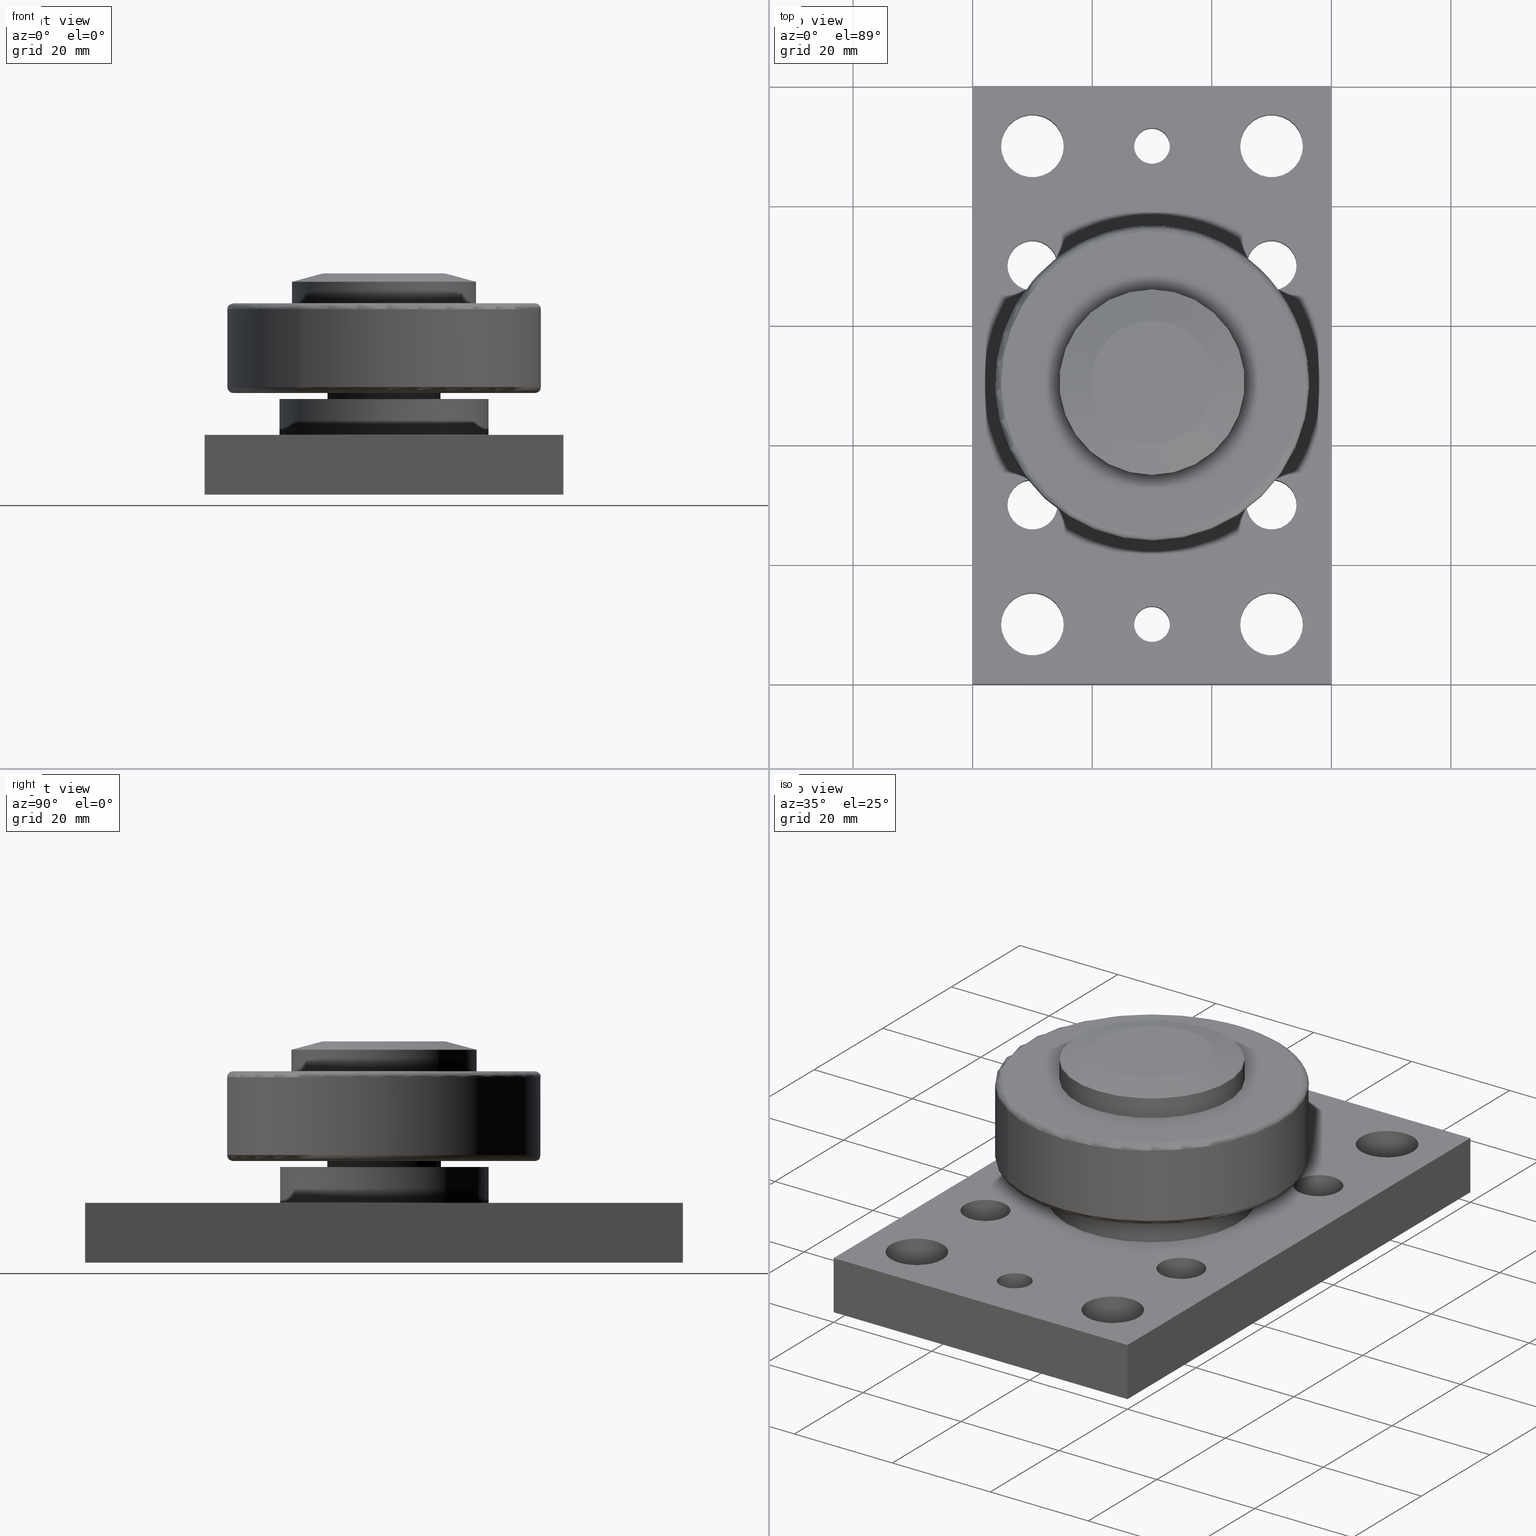
[diagram: canonical four-view strip — front | top / right | iso, engineering-drawing reading convention]
A machine part, canonical four-view strip (front | top / right | iso — engineering-drawing reading convention). The complete STEP part file that produces these views, byte-faithful:
ISO-10303-21;
HEADER;
/****************************************************************
 * Generated by software with PDElib inside                    *
 * PDElib Version v51a, created Wed 11/30/2011                  *
 * ITI Transcendata (http://www.transcendata.com/)              *
 ****************************************************************/
FILE_DESCRIPTION((''),'2;1');
FILE_NAME('K:\\Daten\\KOMPONENTEN 2D + 3D\\KOMPONENTEN Step-Files f\S\|r extern\\_ALFATEC_ALFA-Speed Rollen und Profile\\PAS-Polyamid\\ALFATEC_PAS 050.0360_BR1100.stp','2013-10-01T12:06:01',('hipp'),(''),'Autodesk Inventor 2013','Autodesk Inventor 2013','');
FILE_SCHEMA(('CONFIG_CONTROL_DESIGN'));
ENDSEC;
DATA;
#5=APPLICATION_CONTEXT('configuration controlled 3D designs of mechanical parts and assemblies');
#6=APPLICATION_PROTOCOL_DEFINITION('International Standard','ap203_configuration_controlled_3d_design_of_mechanical_parts_and_assemblies_mim_lf',2004,#5);
#7=PRODUCT_CONTEXT('',#5,'mechanical');
#8=PRODUCT('ALFATEC_PAS 050','ALFATEC_PAS 050',$,(#7));
#9=PRODUCT_RELATED_PRODUCT_CATEGORY('part',$,(#8));
#10=PRODUCT_DEFINITION_FORMATION('',$,#8);
#11=PRODUCT_DEFINITION_CONTEXT('part definition',#5,'design');
#12=PRODUCT_DEFINITION('',$,#10,#11);
#18=(NAMED_UNIT(*)PLANE_ANGLE_UNIT()SI_UNIT($,.RADIAN.));
#19=DIMENSIONAL_EXPONENTS(0.0,0.0,0.0,0.0,0.0,0.0,0.0);
#20=PLANE_ANGLE_MEASURE_WITH_UNIT(PLANE_ANGLE_MEASURE(0.0174532925),#18);
#24=(CONVERSION_BASED_UNIT('DEGREE',#20)NAMED_UNIT(#19)PLANE_ANGLE_UNIT());
#28=(NAMED_UNIT(*)SI_UNIT($,.STERADIAN.)SOLID_ANGLE_UNIT());
#32=(LENGTH_UNIT()NAMED_UNIT(*)SI_UNIT(.MILLI.,.METRE.));
#34=UNCERTAINTY_MEASURE_WITH_UNIT(LENGTH_MEASURE(0.01),#32,'DISTANCE_ACCURACY_VALUE','');
#36=(GEOMETRIC_REPRESENTATION_CONTEXT(3)GLOBAL_UNCERTAINTY_ASSIGNED_CONTEXT((#34))GLOBAL_UNIT_ASSIGNED_CONTEXT((#24,#28,#32))REPRESENTATION_CONTEXT('None','None'));
#37=AXIS2_PLACEMENT_3D('',#38,#39,#40);
#38=CARTESIAN_POINT('',(0.0,0.0,0.0));
#39=DIRECTION('',(0.0,0.0,1.0));
#40=DIRECTION('',(1.0,0.0,0.0));
#41=SHAPE_REPRESENTATION('',(#37),#36);
#42=PRODUCT_DEFINITION_SHAPE('','',#12);
#43=SHAPE_DEFINITION_REPRESENTATION(#42,#41);
#49=(NAMED_UNIT(*)PLANE_ANGLE_UNIT()SI_UNIT($,.RADIAN.));
#50=DIMENSIONAL_EXPONENTS(0.0,0.0,0.0,0.0,0.0,0.0,0.0);
#51=PLANE_ANGLE_MEASURE_WITH_UNIT(PLANE_ANGLE_MEASURE(0.0174532925),#49);
#55=(CONVERSION_BASED_UNIT('DEGREE',#51)NAMED_UNIT(#50)PLANE_ANGLE_UNIT());
#59=(NAMED_UNIT(*)SI_UNIT($,.STERADIAN.)SOLID_ANGLE_UNIT());
#63=(LENGTH_UNIT()NAMED_UNIT(*)SI_UNIT(.MILLI.,.METRE.));
#65=UNCERTAINTY_MEASURE_WITH_UNIT(LENGTH_MEASURE(0.000001),#63,'DISTANCE_ACCURACY_VALUE','');
#67=(GEOMETRIC_REPRESENTATION_CONTEXT(3)GLOBAL_UNCERTAINTY_ASSIGNED_CONTEXT((#65))GLOBAL_UNIT_ASSIGNED_CONTEXT((#55,#59,#63))REPRESENTATION_CONTEXT('','3D'));
#68=CARTESIAN_POINT('',(29.999999999999993,50.0,36.300000000000011));
#69=DIRECTION('',(0.0,0.0,-1.0));
#70=DIRECTION('',(0.0,-1.0,0.0));
#71=AXIS2_PLACEMENT_3D('',#68,#69,#70);
#72=CONICAL_SURFACE('',#71,12.88756443470179,75.000000000000043);
#73=CARTESIAN_POINT('',(29.999999999999993,60.275128869403581,37.0));
#74=VERTEX_POINT('',#73);
#75=CARTESIAN_POINT('',(29.999999999999993,50.0,37.000000000000014));
#76=DIRECTION('',(0.0,0.0,-1.0));
#77=DIRECTION('',(0.0,-1.0,0.0));
#78=AXIS2_PLACEMENT_3D('',#75,#76,#77);
#79=CIRCLE('',#78,10.275128869403582);
#80=EDGE_CURVE('',#74,#74,#79,.T.);
#81=ORIENTED_EDGE('',*,*,#80,.T.);
#82=EDGE_LOOP('',(#81));
#83=FACE_OUTER_BOUND('',#82,.T.);
#84=CARTESIAN_POINT('',(29.999999999999993,65.5,35.600000000000009));
#85=VERTEX_POINT('',#84);
#86=CARTESIAN_POINT('',(29.999999999999993,50.0,35.600000000000009));
#87=DIRECTION('',(0.0,0.0,1.0));
#88=DIRECTION('',(0.0,-1.0,0.0));
#89=AXIS2_PLACEMENT_3D('',#86,#87,#88);
#90=CIRCLE('',#89,15.499999999999996);
#91=EDGE_CURVE('',#85,#85,#90,.T.);
#92=ORIENTED_EDGE('',*,*,#91,.T.);
#93=EDGE_LOOP('',(#92));
#94=FACE_BOUND('',#93,.T.);
#95=ADVANCED_FACE('',(#83,#94),#72,.T.);
#96=CARTESIAN_POINT('',(29.999999999999993,50.0,34.500000000000014));
#97=DIRECTION('',(0.0,0.0,-1.0));
#98=DIRECTION('',(0.0,1.0,0.0));
#99=AXIS2_PLACEMENT_3D('',#96,#97,#98);
#100=CYLINDRICAL_SURFACE('',#99,15.499999999999996);
#101=CARTESIAN_POINT('',(29.999999999999993,65.5,32.000000000000014));
#102=VERTEX_POINT('',#101);
#103=CARTESIAN_POINT('',(29.999999999999993,50.0,32.0));
#104=DIRECTION('',(0.0,0.0,-1.0));
#105=DIRECTION('',(0.0,1.0,0.0));
#106=AXIS2_PLACEMENT_3D('',#103,#104,#105);
#107=CIRCLE('',#106,15.499999999999996);
#108=EDGE_CURVE('',#102,#102,#107,.T.);
#109=ORIENTED_EDGE('',*,*,#108,.F.);
#110=EDGE_LOOP('',(#109));
#111=FACE_OUTER_BOUND('',#110,.T.);
#112=ORIENTED_EDGE('',*,*,#91,.F.);
#113=EDGE_LOOP('',(#112));
#114=FACE_BOUND('',#113,.T.);
#115=ADVANCED_FACE('',(#111,#114),#100,.T.);
#116=CARTESIAN_POINT('',(29.999999999999993,57.749999999999986,37.000000000000014));
#117=DIRECTION('',(0.0,0.0,1.0));
#118=DIRECTION('',(1.0,0.0,0.0));
#119=AXIS2_PLACEMENT_3D('',#116,#117,#118);
#120=PLANE('',#119);
#121=ORIENTED_EDGE('',*,*,#80,.F.);
#122=EDGE_LOOP('',(#121));
#123=FACE_OUTER_BOUND('',#122,.T.);
#124=ADVANCED_FACE('',(#123),#120,.T.);
#125=CARTESIAN_POINT('',(30.0,50.000000000000014,18.000000000000053));
#126=DIRECTION('',(0.0,0.0,-1.0));
#127=DIRECTION('',(-1.0,0.0,0.0));
#128=AXIS2_PLACEMENT_3D('',#125,#126,#127);
#129=TOROIDAL_SURFACE('',#128,25.250000000000004,1.0);
#130=CARTESIAN_POINT('',(16.027586957531035,27.777619979609675,18.000000000000036));
#131=VERTEX_POINT('',#130);
#132=CARTESIAN_POINT('',(30.0,50.000000000000014,18.000000000000053));
#133=DIRECTION('',(0.0,0.0,-1.0));
#134=DIRECTION('',(0.532282401617865,0.846566857919632,0.0));
#135=AXIS2_PLACEMENT_3D('',#132,#133,#134);
#136=CIRCLE('',#135,26.250000000000004);
#137=EDGE_CURVE('',#131,#131,#136,.T.);
#138=ORIENTED_EDGE('',*,*,#137,.T.);
#139=EDGE_LOOP('',(#138));
#140=FACE_OUTER_BOUND('',#139,.T.);
#141=CARTESIAN_POINT('',(16.559869359148905,28.624186837529315,17.000000000000032));
#142=VERTEX_POINT('',#141);
#143=CARTESIAN_POINT('',(30.0,50.000000000000014,17.000000000000057));
#144=DIRECTION('',(0.0,0.0,1.0));
#145=DIRECTION('',(0.532282401617865,0.846566857919632,0.0));
#146=AXIS2_PLACEMENT_3D('',#143,#144,#145);
#147=CIRCLE('',#146,25.25);
#148=EDGE_CURVE('',#142,#142,#147,.T.);
#149=ORIENTED_EDGE('',*,*,#148,.T.);
#150=EDGE_LOOP('',(#149));
#151=FACE_BOUND('',#150,.T.);
#152=ADVANCED_FACE('',(#140,#151),#129,.T.);
#153=CARTESIAN_POINT('',(30.0,50.0,24.500000000000057));
#154=DIRECTION('',(0.0,0.0,-1.0));
#155=DIRECTION('',(-0.532282401617865,-0.846566857919632,0.0));
#156=AXIS2_PLACEMENT_3D('',#153,#154,#155);
#157=CYLINDRICAL_SURFACE('',#156,26.250000000000004);
#158=CARTESIAN_POINT('',(16.027586957531046,27.777619979609653,31.000000000000032));
#159=VERTEX_POINT('',#158);
#160=CARTESIAN_POINT('',(30.0,49.999999999999993,31.00000000000005));
#161=DIRECTION('',(0.0,0.0,1.0));
#162=DIRECTION('',(0.532282401617865,0.846566857919632,0.0));
#163=AXIS2_PLACEMENT_3D('',#160,#161,#162);
#164=CIRCLE('',#163,26.250000000000004);
#165=EDGE_CURVE('',#159,#159,#164,.T.);
#166=ORIENTED_EDGE('',*,*,#165,.F.);
#167=EDGE_LOOP('',(#166));
#168=FACE_OUTER_BOUND('',#167,.T.);
#169=ORIENTED_EDGE('',*,*,#137,.F.);
#170=EDGE_LOOP('',(#169));
#171=FACE_BOUND('',#170,.T.);
#172=ADVANCED_FACE('',(#168,#171),#157,.T.);
#173=CARTESIAN_POINT('',(30.0,49.999999999999993,31.00000000000005));
#174=DIRECTION('',(0.0,0.0,-1.0));
#175=DIRECTION('',(-1.0,0.0,0.0));
#176=AXIS2_PLACEMENT_3D('',#173,#174,#175);
#177=TOROIDAL_SURFACE('',#176,25.250000000000004,1.0);
#178=CARTESIAN_POINT('',(16.559869359148905,28.624186837529287,32.000000000000028));
#179=VERTEX_POINT('',#178);
#180=CARTESIAN_POINT('',(30.0,49.999999999999993,32.000000000000057));
#181=DIRECTION('',(0.0,0.0,-1.0));
#182=DIRECTION('',(0.532282401617865,0.846566857919632,0.0));
#183=AXIS2_PLACEMENT_3D('',#180,#181,#182);
#184=CIRCLE('',#183,25.25);
#185=EDGE_CURVE('',#179,#179,#184,.T.);
#186=ORIENTED_EDGE('',*,*,#185,.T.);
#187=EDGE_LOOP('',(#186));
#188=FACE_OUTER_BOUND('',#187,.T.);
#189=ORIENTED_EDGE('',*,*,#165,.T.);
#190=EDGE_LOOP('',(#189));
#191=FACE_BOUND('',#190,.T.);
#192=ADVANCED_FACE('',(#188,#191),#177,.T.);
#193=CARTESIAN_POINT('',(20.512066191161548,34.909945757582562,17.000000000000036));
#194=DIRECTION('',(0.0,0.0,-1.0));
#195=DIRECTION('',(-1.0,0.0,0.0));
#196=AXIS2_PLACEMENT_3D('',#193,#194,#195);
#197=PLANE('',#196);
#198=ORIENTED_EDGE('',*,*,#148,.F.);
#199=EDGE_LOOP('',(#198));
#200=FACE_OUTER_BOUND('',#199,.T.);
#201=CARTESIAN_POINT('',(29.999999999999993,40.500000000000014,17.000000000000036));
#202=VERTEX_POINT('',#201);
#203=CARTESIAN_POINT('',(29.999999999999993,50.0,17.000000000000036));
#204=DIRECTION('',(0.0,0.0,-1.0));
#205=DIRECTION('',(0.0,1.0,0.0));
#206=AXIS2_PLACEMENT_3D('',#203,#204,#205);
#207=CIRCLE('',#206,9.499999999999991);
#208=EDGE_CURVE('',#202,#202,#207,.T.);
#209=ORIENTED_EDGE('',*,*,#208,.F.);
#210=EDGE_LOOP('',(#209));
#211=FACE_BOUND('',#210,.T.);
#212=ADVANCED_FACE('',(#200,#211),#197,.T.);
#213=CARTESIAN_POINT('',(29.999999999999993,53.75,32.0));
#214=DIRECTION('',(0.0,0.0,1.0));
#215=DIRECTION('',(1.0,0.0,0.0));
#216=AXIS2_PLACEMENT_3D('',#213,#214,#215);
#217=PLANE('',#216);
#218=ORIENTED_EDGE('',*,*,#185,.F.);
#219=EDGE_LOOP('',(#218));
#220=FACE_OUTER_BOUND('',#219,.T.);
#221=ORIENTED_EDGE('',*,*,#108,.T.);
#222=EDGE_LOOP('',(#221));
#223=FACE_BOUND('',#222,.T.);
#224=ADVANCED_FACE('',(#220,#223),#217,.T.);
#225=CARTESIAN_POINT('',(29.999999999999993,50.0,12.999999999999996));
#226=DIRECTION('',(0.0,0.0,1.0));
#227=DIRECTION('',(0.0,1.0,0.0));
#228=AXIS2_PLACEMENT_3D('',#225,#226,#227);
#229=CYLINDRICAL_SURFACE('',#228,17.5);
#230=CARTESIAN_POINT('',(29.999999999999993,67.5,15.999999999999996));
#231=VERTEX_POINT('',#230);
#232=CARTESIAN_POINT('',(29.999999999999993,50.0,15.999999999999996));
#233=DIRECTION('',(0.0,0.0,1.0));
#234=DIRECTION('',(0.0,1.0,0.0));
#235=AXIS2_PLACEMENT_3D('',#232,#233,#234);
#236=CIRCLE('',#235,17.5);
#237=EDGE_CURVE('',#231,#231,#236,.T.);
#238=ORIENTED_EDGE('',*,*,#237,.F.);
#239=EDGE_LOOP('',(#238));
#240=FACE_OUTER_BOUND('',#239,.T.);
#241=CARTESIAN_POINT('',(29.999999999999993,67.5,9.999999999999996));
#242=VERTEX_POINT('',#241);
#243=CARTESIAN_POINT('',(29.999999999999993,50.0,10.0));
#244=DIRECTION('',(0.0,0.0,-1.0));
#245=DIRECTION('',(0.0,1.0,0.0));
#246=AXIS2_PLACEMENT_3D('',#243,#244,#245);
#247=CIRCLE('',#246,17.5);
#248=EDGE_CURVE('',#242,#242,#247,.T.);
#249=ORIENTED_EDGE('',*,*,#248,.F.);
#250=EDGE_LOOP('',(#249));
#251=FACE_BOUND('',#250,.T.);
#252=ADVANCED_FACE('',(#240,#251),#229,.T.);
#253=CARTESIAN_POINT('',(29.999999999999993,63.500000000000007,16.0));
#254=DIRECTION('',(0.0,0.0,1.0));
#255=DIRECTION('',(1.0,0.0,0.0));
#256=AXIS2_PLACEMENT_3D('',#253,#254,#255);
#257=PLANE('',#256);
#258=ORIENTED_EDGE('',*,*,#237,.T.);
#259=EDGE_LOOP('',(#258));
#260=FACE_OUTER_BOUND('',#259,.T.);
#261=CARTESIAN_POINT('',(29.999999999999993,59.499999999999986,16.0));
#262=VERTEX_POINT('',#261);
#263=CARTESIAN_POINT('',(29.999999999999993,50.0,16.0));
#264=DIRECTION('',(0.0,0.0,1.0));
#265=DIRECTION('',(0.0,1.0,0.0));
#266=AXIS2_PLACEMENT_3D('',#263,#264,#265);
#267=CIRCLE('',#266,9.499999999999991);
#268=EDGE_CURVE('',#262,#262,#267,.T.);
#269=ORIENTED_EDGE('',*,*,#268,.F.);
#270=EDGE_LOOP('',(#269));
#271=FACE_BOUND('',#270,.T.);
#272=ADVANCED_FACE('',(#260,#271),#257,.T.);
#273=CARTESIAN_POINT('',(29.999999999999993,50.0,18.000000000000007));
#274=DIRECTION('',(0.0,0.0,1.0));
#275=DIRECTION('',(0.0,1.0,0.0));
#276=AXIS2_PLACEMENT_3D('',#273,#274,#275);
#277=CYLINDRICAL_SURFACE('',#276,9.499999999999991);
#278=ORIENTED_EDGE('',*,*,#208,.T.);
#279=EDGE_LOOP('',(#278));
#280=FACE_OUTER_BOUND('',#279,.T.);
#281=ORIENTED_EDGE('',*,*,#268,.T.);
#282=EDGE_LOOP('',(#281));
#283=FACE_BOUND('',#282,.T.);
#284=ADVANCED_FACE('',(#280,#283),#277,.T.);
#285=CARTESIAN_POINT('',(29.999999999999993,50.0,10.0));
#286=DIRECTION('',(0.0,0.0,1.0));
#287=DIRECTION('',(1.0,0.0,0.0));
#288=AXIS2_PLACEMENT_3D('',#285,#286,#287);
#289=PLANE('',#288);
#290=CARTESIAN_POINT('',(0.0,0.0,10.0));
#291=VERTEX_POINT('',#290);
#292=CARTESIAN_POINT('',(-2.723482E-014,100.0,10.0));
#293=VERTEX_POINT('',#292);
#294=CARTESIAN_POINT('',(0.0,0.0,10.0));
#295=DIRECTION('',(0.0,1.0,0.0));
#296=VECTOR('',#295,100.0);
#297=LINE('',#294,#296);
#298=EDGE_CURVE('',#291,#293,#297,.T.);
#299=ORIENTED_EDGE('',*,*,#298,.F.);
#300=CARTESIAN_POINT('',(60.0,1.034896E-030,10.0));
#301=VERTEX_POINT('',#300);
#302=CARTESIAN_POINT('',(60.0,1.034896E-030,10.0));
#303=DIRECTION('',(-1.0,0.0,0.0));
#304=VECTOR('',#303,60.0);
#305=LINE('',#302,#304);
#306=EDGE_CURVE('',#301,#291,#305,.T.);
#307=ORIENTED_EDGE('',*,*,#306,.F.);
#308=CARTESIAN_POINT('',(59.999999999999986,100.0,10.0));
#309=VERTEX_POINT('',#308);
#310=CARTESIAN_POINT('',(59.999999999999986,100.0,10.0));
#311=DIRECTION('',(0.0,-1.0,0.0));
#312=VECTOR('',#311,100.0);
#313=LINE('',#310,#312);
#314=EDGE_CURVE('',#309,#301,#313,.T.);
#315=ORIENTED_EDGE('',*,*,#314,.F.);
#316=CARTESIAN_POINT('',(-2.723482E-014,100.0,10.0));
#317=DIRECTION('',(1.0,0.0,0.0));
#318=VECTOR('',#317,60.000000000000007);
#319=LINE('',#316,#318);
#320=EDGE_CURVE('',#293,#309,#319,.T.);
#321=ORIENTED_EDGE('',*,*,#320,.F.);
#322=EDGE_LOOP('',(#299,#307,#315,#321));
#323=FACE_OUTER_BOUND('',#322,.T.);
#324=CARTESIAN_POINT('',(33.000000000000014,10.0,10.0));
#325=VERTEX_POINT('',#324);
#326=CARTESIAN_POINT('',(30.000000000000014,10.0,10.0));
#327=DIRECTION('',(0.0,0.0,-1.0));
#328=DIRECTION('',(1.0,0.0,0.0));
#329=AXIS2_PLACEMENT_3D('',#326,#327,#328);
#330=CIRCLE('',#329,3.0);
#331=EDGE_CURVE('',#325,#325,#330,.T.);
#332=ORIENTED_EDGE('',*,*,#331,.T.);
#333=EDGE_LOOP('',(#332));
#334=FACE_BOUND('',#333,.T.);
#335=CARTESIAN_POINT('',(32.999999999999986,90.0,10.0));
#336=VERTEX_POINT('',#335);
#337=CARTESIAN_POINT('',(29.999999999999993,90.0,10.0));
#338=DIRECTION('',(0.0,0.0,-1.0));
#339=DIRECTION('',(1.0,0.0,0.0));
#340=AXIS2_PLACEMENT_3D('',#337,#338,#339);
#341=CIRCLE('',#340,3.0);
#342=EDGE_CURVE('',#336,#336,#341,.T.);
#343=ORIENTED_EDGE('',*,*,#342,.T.);
#344=EDGE_LOOP('',(#343));
#345=FACE_BOUND('',#344,.T.);
#346=CARTESIAN_POINT('',(55.25,10.000000000000009,10.0));
#347=VERTEX_POINT('',#346);
#348=CARTESIAN_POINT('',(50.0,10.000000000000009,10.0));
#349=DIRECTION('',(0.0,0.0,-1.0));
#350=DIRECTION('',(1.0,0.0,0.0));
#351=AXIS2_PLACEMENT_3D('',#348,#349,#350);
#352=CIRCLE('',#351,5.25);
#353=EDGE_CURVE('',#347,#347,#352,.T.);
#354=ORIENTED_EDGE('',*,*,#353,.T.);
#355=EDGE_LOOP('',(#354));
#356=FACE_BOUND('',#355,.T.);
#357=CARTESIAN_POINT('',(15.250000000000002,10.0,10.0));
#358=VERTEX_POINT('',#357);
#359=CARTESIAN_POINT('',(10.0,10.0,10.0));
#360=DIRECTION('',(0.0,0.0,-1.0));
#361=DIRECTION('',(1.0,0.0,0.0));
#362=AXIS2_PLACEMENT_3D('',#359,#360,#361);
#363=CIRCLE('',#362,5.25);
#364=EDGE_CURVE('',#358,#358,#363,.T.);
#365=ORIENTED_EDGE('',*,*,#364,.T.);
#366=EDGE_LOOP('',(#365));
#367=FACE_BOUND('',#366,.T.);
#368=CARTESIAN_POINT('',(15.249999999999989,90.0,10.0));
#369=VERTEX_POINT('',#368);
#370=CARTESIAN_POINT('',(9.999999999999989,90.0,10.0));
#371=DIRECTION('',(0.0,0.0,-1.0));
#372=DIRECTION('',(1.0,0.0,0.0));
#373=AXIS2_PLACEMENT_3D('',#370,#371,#372);
#374=CIRCLE('',#373,5.25);
#375=EDGE_CURVE('',#369,#369,#374,.T.);
#376=ORIENTED_EDGE('',*,*,#375,.T.);
#377=EDGE_LOOP('',(#376));
#378=FACE_BOUND('',#377,.T.);
#379=CARTESIAN_POINT('',(55.249999999999986,90.000000000000028,10.0));
#380=VERTEX_POINT('',#379);
#381=CARTESIAN_POINT('',(49.999999999999972,90.000000000000028,10.0));
#382=DIRECTION('',(0.0,0.0,-1.0));
#383=DIRECTION('',(1.0,0.0,0.0));
#384=AXIS2_PLACEMENT_3D('',#381,#382,#383);
#385=CIRCLE('',#384,5.25);
#386=EDGE_CURVE('',#380,#380,#385,.T.);
#387=ORIENTED_EDGE('',*,*,#386,.T.);
#388=EDGE_LOOP('',(#387));
#389=FACE_BOUND('',#388,.T.);
#390=CARTESIAN_POINT('',(14.188000000000001,29.999999999999964,10.0));
#391=VERTEX_POINT('',#390);
#392=CARTESIAN_POINT('',(10.0,29.999999999999964,10.0));
#393=DIRECTION('',(0.0,0.0,-1.0));
#394=DIRECTION('',(1.0,0.0,0.0));
#395=AXIS2_PLACEMENT_3D('',#392,#393,#394);
#396=CIRCLE('',#395,4.188);
#397=EDGE_CURVE('',#391,#391,#396,.T.);
#398=ORIENTED_EDGE('',*,*,#397,.T.);
#399=EDGE_LOOP('',(#398));
#400=FACE_BOUND('',#399,.T.);
#401=CARTESIAN_POINT('',(14.187999999999981,70.0,10.0));
#402=VERTEX_POINT('',#401);
#403=CARTESIAN_POINT('',(9.999999999999981,70.0,10.0));
#404=DIRECTION('',(0.0,0.0,-1.0));
#405=DIRECTION('',(1.0,0.0,0.0));
#406=AXIS2_PLACEMENT_3D('',#403,#404,#405);
#407=CIRCLE('',#406,4.188);
#408=EDGE_CURVE('',#402,#402,#407,.T.);
#409=ORIENTED_EDGE('',*,*,#408,.T.);
#410=EDGE_LOOP('',(#409));
#411=FACE_BOUND('',#410,.T.);
#412=CARTESIAN_POINT('',(54.188000000000009,70.000000000000028,10.0));
#413=VERTEX_POINT('',#412);
#414=CARTESIAN_POINT('',(50.0,70.000000000000028,10.0));
#415=DIRECTION('',(0.0,0.0,-1.0));
#416=DIRECTION('',(1.0,0.0,0.0));
#417=AXIS2_PLACEMENT_3D('',#414,#415,#416);
#418=CIRCLE('',#417,4.188);
#419=EDGE_CURVE('',#413,#413,#418,.T.);
#420=ORIENTED_EDGE('',*,*,#419,.T.);
#421=EDGE_LOOP('',(#420));
#422=FACE_BOUND('',#421,.T.);
#423=CARTESIAN_POINT('',(54.188000000000009,29.999999999999993,10.0));
#424=VERTEX_POINT('',#423);
#425=CARTESIAN_POINT('',(50.000000000000014,29.999999999999993,10.0));
#426=DIRECTION('',(0.0,0.0,-1.0));
#427=DIRECTION('',(1.0,0.0,0.0));
#428=AXIS2_PLACEMENT_3D('',#425,#426,#427);
#429=CIRCLE('',#428,4.188);
#430=EDGE_CURVE('',#424,#424,#429,.T.);
#431=ORIENTED_EDGE('',*,*,#430,.T.);
#432=EDGE_LOOP('',(#431));
#433=FACE_BOUND('',#432,.T.);
#434=ORIENTED_EDGE('',*,*,#248,.T.);
#435=EDGE_LOOP('',(#434));
#436=FACE_BOUND('',#435,.T.);
#437=ADVANCED_FACE('',(#323,#334,#345,#356,#367,#378,#389,#400,#411,#422,#433,#436),#289,.T.);
#438=CARTESIAN_POINT('',(29.999999999999993,50.0,0.0));
#439=DIRECTION('',(0.0,0.0,1.0));
#440=DIRECTION('',(1.0,0.0,0.0));
#441=AXIS2_PLACEMENT_3D('',#438,#439,#440);
#442=PLANE('',#441);
#443=CARTESIAN_POINT('',(0.0,0.0,0.0));
#444=VERTEX_POINT('',#443);
#445=CARTESIAN_POINT('',(60.0,1.034896E-030,0.0));
#446=VERTEX_POINT('',#445);
#447=CARTESIAN_POINT('',(0.0,0.0,0.0));
#448=DIRECTION('',(1.0,0.0,0.0));
#449=VECTOR('',#448,60.0);
#450=LINE('',#447,#449);
#451=EDGE_CURVE('',#444,#446,#450,.T.);
#452=ORIENTED_EDGE('',*,*,#451,.F.);
#453=CARTESIAN_POINT('',(-2.723482E-014,100.0,0.0));
#454=VERTEX_POINT('',#453);
#455=CARTESIAN_POINT('',(-2.723482E-014,100.0,0.0));
#456=DIRECTION('',(0.0,-1.0,0.0));
#457=VECTOR('',#456,100.0);
#458=LINE('',#455,#457);
#459=EDGE_CURVE('',#454,#444,#458,.T.);
#460=ORIENTED_EDGE('',*,*,#459,.F.);
#461=CARTESIAN_POINT('',(59.999999999999986,100.0,0.0));
#462=VERTEX_POINT('',#461);
#463=CARTESIAN_POINT('',(59.999999999999986,100.0,0.0));
#464=DIRECTION('',(-1.0,0.0,0.0));
#465=VECTOR('',#464,60.000000000000007);
#466=LINE('',#463,#465);
#467=EDGE_CURVE('',#462,#454,#466,.T.);
#468=ORIENTED_EDGE('',*,*,#467,.F.);
#469=CARTESIAN_POINT('',(60.0,1.034896E-030,0.0));
#470=DIRECTION('',(0.0,1.0,0.0));
#471=VECTOR('',#470,100.0);
#472=LINE('',#469,#471);
#473=EDGE_CURVE('',#446,#462,#472,.T.);
#474=ORIENTED_EDGE('',*,*,#473,.F.);
#475=EDGE_LOOP('',(#452,#460,#468,#474));
#476=FACE_OUTER_BOUND('',#475,.T.);
#477=CARTESIAN_POINT('',(45.812000000000019,29.999999999999993,0.0));
#478=VERTEX_POINT('',#477);
#479=CARTESIAN_POINT('',(50.000000000000014,29.999999999999993,0.0));
#480=DIRECTION('',(0.0,0.0,1.0));
#481=DIRECTION('',(1.0,0.0,0.0));
#482=AXIS2_PLACEMENT_3D('',#479,#480,#481);
#483=CIRCLE('',#482,4.188);
#484=EDGE_CURVE('',#478,#478,#483,.T.);
#485=ORIENTED_EDGE('',*,*,#484,.T.);
#486=EDGE_LOOP('',(#485));
#487=FACE_BOUND('',#486,.T.);
#488=CARTESIAN_POINT('',(45.811999999999998,70.000000000000028,0.0));
#489=VERTEX_POINT('',#488);
#490=CARTESIAN_POINT('',(50.0,70.000000000000028,0.0));
#491=DIRECTION('',(0.0,0.0,1.0));
#492=DIRECTION('',(1.0,0.0,0.0));
#493=AXIS2_PLACEMENT_3D('',#490,#491,#492);
#494=CIRCLE('',#493,4.188);
#495=EDGE_CURVE('',#489,#489,#494,.T.);
#496=ORIENTED_EDGE('',*,*,#495,.T.);
#497=EDGE_LOOP('',(#496));
#498=FACE_BOUND('',#497,.T.);
#499=CARTESIAN_POINT('',(5.811999999999981,70.0,0.0));
#500=VERTEX_POINT('',#499);
#501=CARTESIAN_POINT('',(9.999999999999981,70.0,0.0));
#502=DIRECTION('',(0.0,0.0,1.0));
#503=DIRECTION('',(1.0,0.0,0.0));
#504=AXIS2_PLACEMENT_3D('',#501,#502,#503);
#505=CIRCLE('',#504,4.188);
#506=EDGE_CURVE('',#500,#500,#505,.T.);
#507=ORIENTED_EDGE('',*,*,#506,.T.);
#508=EDGE_LOOP('',(#507));
#509=FACE_BOUND('',#508,.T.);
#510=CARTESIAN_POINT('',(5.811999999999999,29.999999999999964,0.0));
#511=VERTEX_POINT('',#510);
#512=CARTESIAN_POINT('',(10.0,29.999999999999964,0.0));
#513=DIRECTION('',(0.0,0.0,1.0));
#514=DIRECTION('',(1.0,0.0,0.0));
#515=AXIS2_PLACEMENT_3D('',#512,#513,#514);
#516=CIRCLE('',#515,4.188);
#517=EDGE_CURVE('',#511,#511,#516,.T.);
#518=ORIENTED_EDGE('',*,*,#517,.T.);
#519=EDGE_LOOP('',(#518));
#520=FACE_BOUND('',#519,.T.);
#521=CARTESIAN_POINT('',(44.749999999999972,90.000000000000028,0.0));
#522=VERTEX_POINT('',#521);
#523=CARTESIAN_POINT('',(49.999999999999972,90.000000000000028,0.0));
#524=DIRECTION('',(0.0,0.0,1.0));
#525=DIRECTION('',(1.0,0.0,0.0));
#526=AXIS2_PLACEMENT_3D('',#523,#524,#525);
#527=CIRCLE('',#526,5.25);
#528=EDGE_CURVE('',#522,#522,#527,.T.);
#529=ORIENTED_EDGE('',*,*,#528,.T.);
#530=EDGE_LOOP('',(#529));
#531=FACE_BOUND('',#530,.T.);
#532=CARTESIAN_POINT('',(4.749999999999989,90.0,0.0));
#533=VERTEX_POINT('',#532);
#534=CARTESIAN_POINT('',(9.999999999999989,90.0,0.0));
#535=DIRECTION('',(0.0,0.0,1.0));
#536=DIRECTION('',(1.0,0.0,0.0));
#537=AXIS2_PLACEMENT_3D('',#534,#535,#536);
#538=CIRCLE('',#537,5.25);
#539=EDGE_CURVE('',#533,#533,#538,.T.);
#540=ORIENTED_EDGE('',*,*,#539,.T.);
#541=EDGE_LOOP('',(#540));
#542=FACE_BOUND('',#541,.T.);
#543=CARTESIAN_POINT('',(4.75,9.999999999999996,0.0));
#544=VERTEX_POINT('',#543);
#545=CARTESIAN_POINT('',(10.0,10.0,0.0));
#546=DIRECTION('',(0.0,0.0,1.0));
#547=DIRECTION('',(1.0,0.0,0.0));
#548=AXIS2_PLACEMENT_3D('',#545,#546,#547);
#549=CIRCLE('',#548,5.25);
#550=EDGE_CURVE('',#544,#544,#549,.T.);
#551=ORIENTED_EDGE('',*,*,#550,.T.);
#552=EDGE_LOOP('',(#551));
#553=FACE_BOUND('',#552,.T.);
#554=CARTESIAN_POINT('',(44.750000000000007,10.000000000000009,0.0));
#555=VERTEX_POINT('',#554);
#556=CARTESIAN_POINT('',(50.0,10.000000000000009,0.0));
#557=DIRECTION('',(0.0,0.0,1.0));
#558=DIRECTION('',(1.0,0.0,0.0));
#559=AXIS2_PLACEMENT_3D('',#556,#557,#558);
#560=CIRCLE('',#559,5.25);
#561=EDGE_CURVE('',#555,#555,#560,.T.);
#562=ORIENTED_EDGE('',*,*,#561,.T.);
#563=EDGE_LOOP('',(#562));
#564=FACE_BOUND('',#563,.T.);
#565=CARTESIAN_POINT('',(26.999999999999993,90.0,0.0));
#566=VERTEX_POINT('',#565);
#567=CARTESIAN_POINT('',(29.999999999999993,90.0,0.0));
#568=DIRECTION('',(0.0,0.0,1.0));
#569=DIRECTION('',(1.0,0.0,0.0));
#570=AXIS2_PLACEMENT_3D('',#567,#568,#569);
#571=CIRCLE('',#570,3.0);
#572=EDGE_CURVE('',#566,#566,#571,.T.);
#573=ORIENTED_EDGE('',*,*,#572,.T.);
#574=EDGE_LOOP('',(#573));
#575=FACE_BOUND('',#574,.T.);
#576=CARTESIAN_POINT('',(27.0,10.0,0.0));
#577=VERTEX_POINT('',#576);
#578=CARTESIAN_POINT('',(30.000000000000014,10.0,0.0));
#579=DIRECTION('',(0.0,0.0,1.0));
#580=DIRECTION('',(1.0,0.0,0.0));
#581=AXIS2_PLACEMENT_3D('',#578,#579,#580);
#582=CIRCLE('',#581,3.0);
#583=EDGE_CURVE('',#577,#577,#582,.T.);
#584=ORIENTED_EDGE('',*,*,#583,.T.);
#585=EDGE_LOOP('',(#584));
#586=FACE_BOUND('',#585,.T.);
#587=ADVANCED_FACE('',(#476,#487,#498,#509,#520,#531,#542,#553,#564,#575,#586),#442,.F.);
#588=CARTESIAN_POINT('',(30.000000000000014,10.0,-107.04699910719626));
#589=DIRECTION('',(0.0,0.0,1.0));
#590=DIRECTION('',(1.0,0.0,0.0));
#591=AXIS2_PLACEMENT_3D('',#588,#589,#590);
#592=CYLINDRICAL_SURFACE('',#591,3.0);
#593=ORIENTED_EDGE('',*,*,#583,.F.);
#594=EDGE_LOOP('',(#593));
#595=FACE_OUTER_BOUND('',#594,.T.);
#596=ORIENTED_EDGE('',*,*,#331,.F.);
#597=EDGE_LOOP('',(#596));
#598=FACE_BOUND('',#597,.T.);
#599=ADVANCED_FACE('',(#595,#598),#592,.F.);
#600=CARTESIAN_POINT('',(29.999999999999993,90.0,-107.04699910719626));
#601=DIRECTION('',(0.0,0.0,1.0));
#602=DIRECTION('',(1.0,0.0,0.0));
#603=AXIS2_PLACEMENT_3D('',#600,#601,#602);
#604=CYLINDRICAL_SURFACE('',#603,3.0);
#605=ORIENTED_EDGE('',*,*,#572,.F.);
#606=EDGE_LOOP('',(#605));
#607=FACE_OUTER_BOUND('',#606,.T.);
#608=ORIENTED_EDGE('',*,*,#342,.F.);
#609=EDGE_LOOP('',(#608));
#610=FACE_BOUND('',#609,.T.);
#611=ADVANCED_FACE('',(#607,#610),#604,.F.);
#612=CARTESIAN_POINT('',(50.0,10.000000000000009,-107.04699910719626));
#613=DIRECTION('',(0.0,0.0,1.0));
#614=DIRECTION('',(1.0,0.0,0.0));
#615=AXIS2_PLACEMENT_3D('',#612,#613,#614);
#616=CYLINDRICAL_SURFACE('',#615,5.25);
#617=ORIENTED_EDGE('',*,*,#561,.F.);
#618=EDGE_LOOP('',(#617));
#619=FACE_OUTER_BOUND('',#618,.T.);
#620=ORIENTED_EDGE('',*,*,#353,.F.);
#621=EDGE_LOOP('',(#620));
#622=FACE_BOUND('',#621,.T.);
#623=ADVANCED_FACE('',(#619,#622),#616,.F.);
#624=CARTESIAN_POINT('',(10.0,10.0,-107.04699910719626));
#625=DIRECTION('',(0.0,0.0,1.0));
#626=DIRECTION('',(1.0,0.0,0.0));
#627=AXIS2_PLACEMENT_3D('',#624,#625,#626);
#628=CYLINDRICAL_SURFACE('',#627,5.25);
#629=ORIENTED_EDGE('',*,*,#550,.F.);
#630=EDGE_LOOP('',(#629));
#631=FACE_OUTER_BOUND('',#630,.T.);
#632=ORIENTED_EDGE('',*,*,#364,.F.);
#633=EDGE_LOOP('',(#632));
#634=FACE_BOUND('',#633,.T.);
#635=ADVANCED_FACE('',(#631,#634),#628,.F.);
#636=CARTESIAN_POINT('',(9.999999999999989,90.0,-107.04699910719626));
#637=DIRECTION('',(0.0,0.0,1.0));
#638=DIRECTION('',(1.0,0.0,0.0));
#639=AXIS2_PLACEMENT_3D('',#636,#637,#638);
#640=CYLINDRICAL_SURFACE('',#639,5.25);
#641=ORIENTED_EDGE('',*,*,#539,.F.);
#642=EDGE_LOOP('',(#641));
#643=FACE_OUTER_BOUND('',#642,.T.);
#644=ORIENTED_EDGE('',*,*,#375,.F.);
#645=EDGE_LOOP('',(#644));
#646=FACE_BOUND('',#645,.T.);
#647=ADVANCED_FACE('',(#643,#646),#640,.F.);
#648=CARTESIAN_POINT('',(49.999999999999972,90.000000000000028,-107.04699910719626));
#649=DIRECTION('',(0.0,0.0,1.0));
#650=DIRECTION('',(1.0,0.0,0.0));
#651=AXIS2_PLACEMENT_3D('',#648,#649,#650);
#652=CYLINDRICAL_SURFACE('',#651,5.25);
#653=ORIENTED_EDGE('',*,*,#528,.F.);
#654=EDGE_LOOP('',(#653));
#655=FACE_OUTER_BOUND('',#654,.T.);
#656=ORIENTED_EDGE('',*,*,#386,.F.);
#657=EDGE_LOOP('',(#656));
#658=FACE_BOUND('',#657,.T.);
#659=ADVANCED_FACE('',(#655,#658),#652,.F.);
#660=CARTESIAN_POINT('',(10.0,29.999999999999964,-107.04699910719626));
#661=DIRECTION('',(0.0,0.0,1.0));
#662=DIRECTION('',(1.0,0.0,0.0));
#663=AXIS2_PLACEMENT_3D('',#660,#661,#662);
#664=CYLINDRICAL_SURFACE('',#663,4.188);
#665=ORIENTED_EDGE('',*,*,#517,.F.);
#666=EDGE_LOOP('',(#665));
#667=FACE_OUTER_BOUND('',#666,.T.);
#668=ORIENTED_EDGE('',*,*,#397,.F.);
#669=EDGE_LOOP('',(#668));
#670=FACE_BOUND('',#669,.T.);
#671=ADVANCED_FACE('',(#667,#670),#664,.F.);
#672=CARTESIAN_POINT('',(9.999999999999981,70.0,-107.04699910719626));
#673=DIRECTION('',(0.0,0.0,1.0));
#674=DIRECTION('',(1.0,0.0,0.0));
#675=AXIS2_PLACEMENT_3D('',#672,#673,#674);
#676=CYLINDRICAL_SURFACE('',#675,4.188);
#677=ORIENTED_EDGE('',*,*,#506,.F.);
#678=EDGE_LOOP('',(#677));
#679=FACE_OUTER_BOUND('',#678,.T.);
#680=ORIENTED_EDGE('',*,*,#408,.F.);
#681=EDGE_LOOP('',(#680));
#682=FACE_BOUND('',#681,.T.);
#683=ADVANCED_FACE('',(#679,#682),#676,.F.);
#684=CARTESIAN_POINT('',(50.0,70.000000000000028,-107.04699910719626));
#685=DIRECTION('',(0.0,0.0,1.0));
#686=DIRECTION('',(1.0,0.0,0.0));
#687=AXIS2_PLACEMENT_3D('',#684,#685,#686);
#688=CYLINDRICAL_SURFACE('',#687,4.188);
#689=ORIENTED_EDGE('',*,*,#495,.F.);
#690=EDGE_LOOP('',(#689));
#691=FACE_OUTER_BOUND('',#690,.T.);
#692=ORIENTED_EDGE('',*,*,#419,.F.);
#693=EDGE_LOOP('',(#692));
#694=FACE_BOUND('',#693,.T.);
#695=ADVANCED_FACE('',(#691,#694),#688,.F.);
#696=CARTESIAN_POINT('',(50.000000000000014,29.999999999999993,-107.04699910719626));
#697=DIRECTION('',(0.0,0.0,1.0));
#698=DIRECTION('',(1.0,0.0,0.0));
#699=AXIS2_PLACEMENT_3D('',#696,#697,#698);
#700=CYLINDRICAL_SURFACE('',#699,4.188);
#701=ORIENTED_EDGE('',*,*,#484,.F.);
#702=EDGE_LOOP('',(#701));
#703=FACE_OUTER_BOUND('',#702,.T.);
#704=ORIENTED_EDGE('',*,*,#430,.F.);
#705=EDGE_LOOP('',(#704));
#706=FACE_BOUND('',#705,.T.);
#707=ADVANCED_FACE('',(#703,#706),#700,.F.);
#708=CARTESIAN_POINT('',(0.0,0.0,0.0));
#709=DIRECTION('',(-1.0,0.0,0.0));
#710=DIRECTION('',(0.0,0.0,1.0));
#711=AXIS2_PLACEMENT_3D('',#708,#709,#710);
#712=PLANE('',#711);
#713=ORIENTED_EDGE('',*,*,#298,.T.);
#714=CARTESIAN_POINT('',(-2.723482E-014,100.0,0.0));
#715=DIRECTION('',(0.0,0.0,1.0));
#716=VECTOR('',#715,10.0);
#717=LINE('',#714,#716);
#718=EDGE_CURVE('',#454,#293,#717,.T.);
#719=ORIENTED_EDGE('',*,*,#718,.F.);
#720=ORIENTED_EDGE('',*,*,#459,.T.);
#721=CARTESIAN_POINT('',(0.0,0.0,0.0));
#722=DIRECTION('',(0.0,0.0,1.0));
#723=VECTOR('',#722,10.0);
#724=LINE('',#721,#723);
#725=EDGE_CURVE('',#444,#291,#724,.T.);
#726=ORIENTED_EDGE('',*,*,#725,.T.);
#727=EDGE_LOOP('',(#713,#719,#720,#726));
#728=FACE_OUTER_BOUND('',#727,.T.);
#729=ADVANCED_FACE('',(#728),#712,.T.);
#730=CARTESIAN_POINT('',(-2.723482E-014,100.0,0.0));
#731=DIRECTION('',(0.0,1.0,0.0));
#732=DIRECTION('',(0.0,0.0,1.0));
#733=AXIS2_PLACEMENT_3D('',#730,#731,#732);
#734=PLANE('',#733);
#735=ORIENTED_EDGE('',*,*,#320,.T.);
#736=CARTESIAN_POINT('',(59.999999999999986,100.0,0.0));
#737=DIRECTION('',(0.0,0.0,1.0));
#738=VECTOR('',#737,10.0);
#739=LINE('',#736,#738);
#740=EDGE_CURVE('',#462,#309,#739,.T.);
#741=ORIENTED_EDGE('',*,*,#740,.F.);
#742=ORIENTED_EDGE('',*,*,#467,.T.);
#743=ORIENTED_EDGE('',*,*,#718,.T.);
#744=EDGE_LOOP('',(#735,#741,#742,#743));
#745=FACE_OUTER_BOUND('',#744,.T.);
#746=ADVANCED_FACE('',(#745),#734,.T.);
#747=CARTESIAN_POINT('',(59.999999999999986,100.0,0.0));
#748=DIRECTION('',(1.0,0.0,0.0));
#749=DIRECTION('',(0.0,0.0,-1.0));
#750=AXIS2_PLACEMENT_3D('',#747,#748,#749);
#751=PLANE('',#750);
#752=ORIENTED_EDGE('',*,*,#314,.T.);
#753=CARTESIAN_POINT('',(60.0,1.034896E-030,0.0));
#754=DIRECTION('',(0.0,0.0,1.0));
#755=VECTOR('',#754,10.0);
#756=LINE('',#753,#755);
#757=EDGE_CURVE('',#446,#301,#756,.T.);
#758=ORIENTED_EDGE('',*,*,#757,.F.);
#759=ORIENTED_EDGE('',*,*,#473,.T.);
#760=ORIENTED_EDGE('',*,*,#740,.T.);
#761=EDGE_LOOP('',(#752,#758,#759,#760));
#762=FACE_OUTER_BOUND('',#761,.T.);
#763=ADVANCED_FACE('',(#762),#751,.T.);
#764=CARTESIAN_POINT('',(60.0,1.034896E-030,0.0));
#765=DIRECTION('',(0.0,-1.0,0.0));
#766=DIRECTION('',(0.0,0.0,-1.0));
#767=AXIS2_PLACEMENT_3D('',#764,#765,#766);
#768=PLANE('',#767);
#769=ORIENTED_EDGE('',*,*,#306,.T.);
#770=ORIENTED_EDGE('',*,*,#725,.F.);
#771=ORIENTED_EDGE('',*,*,#451,.T.);
#772=ORIENTED_EDGE('',*,*,#757,.T.);
#773=EDGE_LOOP('',(#769,#770,#771,#772));
#774=FACE_OUTER_BOUND('',#773,.T.);
#775=ADVANCED_FACE('',(#774),#768,.T.);
#776=CLOSED_SHELL('',(#95,#115,#124,#152,#172,#192,#212,#224,#252,#272,#284,#437,#587,#599,#611,#623,#635,#647,#659,#671,#683,#695,#707,#729,#746,#763,#775));
#777=CARTESIAN_POINT('',(29.999999999999993,50.0,10.0));
#778=DIRECTION('',(0.0,0.0,1.0));
#779=DIRECTION('',(1.0,0.0,0.0));
#780=AXIS2_PLACEMENT_3D('',#777,#778,#779);
#781=PLANE('',#780);
#782=CARTESIAN_POINT('',(33.323499999999981,50.0,10.0));
#783=VERTEX_POINT('',#782);
#784=CARTESIAN_POINT('',(29.999999999999993,50.0,10.0));
#785=DIRECTION('',(0.0,0.0,1.0));
#786=DIRECTION('',(-1.0,0.0,0.0));
#787=AXIS2_PLACEMENT_3D('',#784,#785,#786);
#788=CIRCLE('',#787,3.3235);
#789=EDGE_CURVE('',#783,#783,#788,.T.);
#790=ORIENTED_EDGE('',*,*,#789,.T.);
#791=EDGE_LOOP('',(#790));
#792=FACE_OUTER_BOUND('',#791,.T.);
#793=ADVANCED_FACE('',(#792),#781,.T.);
#794=CARTESIAN_POINT('',(29.999999999999993,50.0,11.000000000000012));
#795=DIRECTION('',(0.0,0.0,-1.0));
#796=DIRECTION('',(-1.0,0.0,0.0));
#797=AXIS2_PLACEMENT_3D('',#794,#795,#796);
#798=CYLINDRICAL_SURFACE('',#797,3.3235);
#799=CARTESIAN_POINT('',(26.676499999999987,50.0,17.000000000000011));
#800=VERTEX_POINT('',#799);
#801=CARTESIAN_POINT('',(29.999999999999993,50.0,17.0));
#802=DIRECTION('',(0.0,0.0,-1.0));
#803=DIRECTION('',(-1.0,0.0,0.0));
#804=AXIS2_PLACEMENT_3D('',#801,#802,#803);
#805=CIRCLE('',#804,3.3235);
#806=EDGE_CURVE('',#800,#800,#805,.T.);
#807=ORIENTED_EDGE('',*,*,#806,.F.);
#808=EDGE_LOOP('',(#807));
#809=FACE_OUTER_BOUND('',#808,.T.);
#810=ORIENTED_EDGE('',*,*,#789,.F.);
#811=EDGE_LOOP('',(#810));
#812=FACE_BOUND('',#811,.T.);
#813=ADVANCED_FACE('',(#809,#812),#798,.F.);
#814=CARTESIAN_POINT('',(20.512066191161548,34.909945757582562,17.000000000000036));
#815=DIRECTION('',(0.0,0.0,-1.0));
#816=DIRECTION('',(-1.0,0.0,0.0));
#817=AXIS2_PLACEMENT_3D('',#814,#815,#816);
#818=PLANE('',#817);
#819=ORIENTED_EDGE('',*,*,#806,.T.);
#820=EDGE_LOOP('',(#819));
#821=FACE_OUTER_BOUND('',#820,.T.);
#822=ADVANCED_FACE('',(#821),#818,.T.);
#823=CLOSED_SHELL('',(#793,#813,#822));
#824=ORIENTED_CLOSED_SHELL('',*,#823,.F.);
#825=BREP_WITH_VOIDS('Volumenk\S\vrper1',#776,(#824));
#826=COLOUR_RGB('',0.705882012844086,0.705882012844086,0.705882012844086);
#827=FILL_AREA_STYLE_COLOUR('',#826);
#828=FILL_AREA_STYLE('',(#827));
#829=SURFACE_STYLE_FILL_AREA(#828);
#830=SURFACE_SIDE_STYLE('',(#829));
#831=SURFACE_STYLE_USAGE(.BOTH.,#830);
#832=PRESENTATION_STYLE_ASSIGNMENT((#831));
#833=STYLED_ITEM('',(#832),#95);
#834=STYLED_ITEM('',(#832),#115);
#835=STYLED_ITEM('',(#832),#124);
#836=COLOUR_RGB('',0.945098042488098,0.949019610881805,0.972549021244049);
#837=FILL_AREA_STYLE_COLOUR('',#836);
#838=FILL_AREA_STYLE('',(#837));
#839=SURFACE_STYLE_FILL_AREA(#838);
#840=SURFACE_SIDE_STYLE('',(#839));
#841=SURFACE_STYLE_USAGE(.BOTH.,#840);
#842=PRESENTATION_STYLE_ASSIGNMENT((#841));
#843=STYLED_ITEM('',(#842),#152);
#844=STYLED_ITEM('',(#842),#172);
#845=STYLED_ITEM('',(#842),#192);
#846=STYLED_ITEM('',(#842),#212);
#847=STYLED_ITEM('',(#842),#224);
#848=COLOUR_RGB('',0.549019992351532,0.549019992351532,0.607842981815338);
#849=FILL_AREA_STYLE_COLOUR('',#848);
#850=FILL_AREA_STYLE('',(#849));
#851=SURFACE_STYLE_FILL_AREA(#850);
#852=SURFACE_SIDE_STYLE('',(#851));
#853=SURFACE_STYLE_USAGE(.BOTH.,#852);
#854=PRESENTATION_STYLE_ASSIGNMENT((#853));
#855=STYLED_ITEM('',(#854),#252);
#856=STYLED_ITEM('',(#854),#272);
#857=STYLED_ITEM('',(#854),#284);
#858=COLOUR_RGB('',0.639216005802155,0.639216005802155,0.686275005340576);
#859=FILL_AREA_STYLE_COLOUR('',#858);
#860=FILL_AREA_STYLE('',(#859));
#861=SURFACE_STYLE_FILL_AREA(#860);
#862=SURFACE_SIDE_STYLE('',(#861));
#863=SURFACE_STYLE_USAGE(.BOTH.,#862);
#864=PRESENTATION_STYLE_ASSIGNMENT((#863));
#865=STYLED_ITEM('',(#864),#437);
#866=STYLED_ITEM('',(#864),#587);
#867=STYLED_ITEM('',(#864),#599);
#868=STYLED_ITEM('',(#864),#611);
#869=STYLED_ITEM('',(#864),#623);
#870=STYLED_ITEM('',(#864),#635);
#871=STYLED_ITEM('',(#864),#647);
#872=STYLED_ITEM('',(#864),#659);
#873=STYLED_ITEM('',(#864),#671);
#874=STYLED_ITEM('',(#864),#683);
#875=STYLED_ITEM('',(#864),#695);
#876=STYLED_ITEM('',(#864),#707);
#877=STYLED_ITEM('',(#864),#729);
#878=STYLED_ITEM('',(#864),#746);
#879=STYLED_ITEM('',(#864),#763);
#880=STYLED_ITEM('',(#864),#775);
#881=STYLED_ITEM('',(#864),#793);
#882=STYLED_ITEM('',(#854),#813);
#883=STYLED_ITEM('',(#864),#822);
#884=MECHANICAL_DESIGN_GEOMETRIC_PRESENTATION_REPRESENTATION('',(#833,#834,#835,#843,#844,#845,#846,#847,#855,#856,#857,#865,#866,#867,#868,#869,#870,#871,#872,#873,#874,#875,#876,#877,#878,#879,#880,#881,#882,#883,#892),#67);
#885=COLOUR_RGB('163,163,175',0.639216005802155,0.639216005802155,0.686275005340576);
#886=FILL_AREA_STYLE_COLOUR('163,163,175',#885);
#887=FILL_AREA_STYLE('163,163,175',(#886));
#888=SURFACE_STYLE_FILL_AREA(#887);
#889=SURFACE_SIDE_STYLE('163,163,175',(#888));
#890=SURFACE_STYLE_USAGE(.BOTH.,#889);
#891=PRESENTATION_STYLE_ASSIGNMENT((#890));
#892=STYLED_ITEM('',(#891),#825);
#893=ADVANCED_BREP_SHAPE_REPRESENTATION('ABSR',(#825),#36);
#894=SHAPE_REPRESENTATION_RELATIONSHIP('SRR','None',#893,#41);
ENDSEC;
END-ISO-10303-21;
